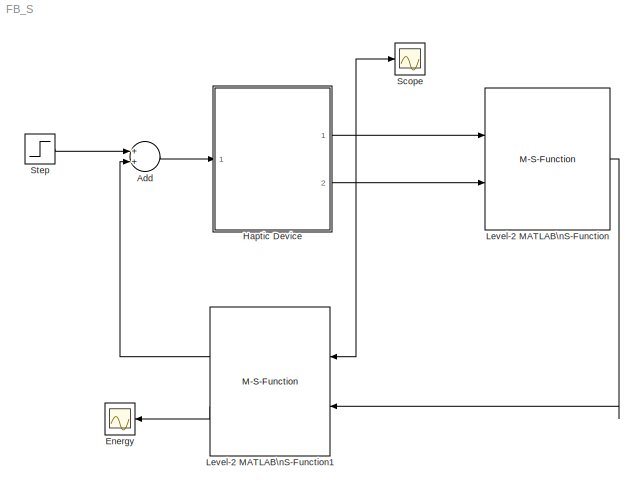
MODEL FB_S
KIND model
BLOCK [Sum] Add
  InputSameDT = off
  OutDataTypeStr = Inherit: Inherit via internal rule
  Ports = [2, 1]
  SID = 1
  SaturateOnIntegerOverflow = off
BLOCK [Scope] Energy
  Ports = [1]
  SID = 20
  ScopeSpecificationString = Simulink.scopes.TimeScopeBlockCfg('CurrentConfiguration', extmgr.ConfigurationSet(extmgr.Configuration('Core','General UI',true),extmgr.Configuration('Core','Source UI',true),extmgr.Configuration('Sources','WiredSimulink',true,'DataLoggingVariableName','ScopeData1'),extmgr.Configuration('Visuals','Time Domain',true,'SerializedDisplays',{struct('MinYLimReal','-0.09012','MaxYLimReal','0.81106','YLab...<+1387ch>
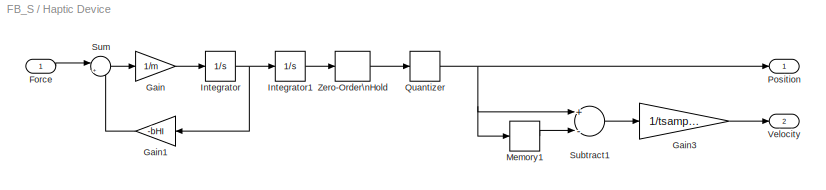
BLOCK [SubSystem] Haptic Device
  Ports = [1, 2]
  RequestExecContextInheritance = off
  SID = 2
  Variant = off
BLOCK [Inport] Haptic Device/Force
  IconDisplay = Port number
  SID = 3
BLOCK [Gain] Haptic Device/Gain
  Gain = 1/m
  OutDataTypeStr = Inherit: Inherit via internal rule
  ParamDataTypeStr = Inherit: Inherit via internal rule
  SID = 4
  SaturateOnIntegerOverflow = off
BLOCK [Gain] Haptic Device/Gain1
  Gain = -bHI
  OutDataTypeStr = Inherit: Inherit via internal rule
  ParamDataTypeStr = Inherit: Inherit via internal rule
  SID = 5
  SaturateOnIntegerOverflow = off
BLOCK [Gain] Haptic Device/Gain3
  Gain = 1/tsampling
  OutDataTypeStr = Inherit: Inherit via internal rule
  ParamDataTypeStr = Inherit: Inherit via internal rule
  SID = 6
  SaturateOnIntegerOverflow = off
BLOCK [Integrator] Haptic Device/Integrator
  InitialCondition = x_dot0
  Ports = [1, 1]
  SID = 7
BLOCK [Integrator] Haptic Device/Integrator1
  InitialCondition = x0
  Ports = [1, 1]
  SID = 8
BLOCK [Memory] Haptic Device/Memory1
  SID = 9
  X0 = x0
BLOCK [Outport] Haptic Device/Position
  IconDisplay = Port number
  SID = 14
BLOCK [Quantizer] Haptic Device/Quantizer
  QuantizationInterval = 0.00002
  SID = 10
BLOCK [Sum] Haptic Device/Subtract1
  InputSameDT = off
  Inputs = +-
  OutDataTypeStr = Inherit: Inherit via internal rule
  Ports = [2, 1]
  SID = 11
  SaturateOnIntegerOverflow = off
BLOCK [Sum] Haptic Device/Sum
  IconShape = round
  InputSameDT = off
  Inputs = |++
  OutDataTypeStr = Inherit: Inherit via internal rule
  Ports = [2, 1]
  SID = 12
  SaturateOnIntegerOverflow = off
BLOCK [Outport] Haptic Device/Velocity
  IconDisplay = Port number
  Port = 2
  SID = 15
BLOCK [ZeroOrderHold] Haptic Device/Zero-Order\nHold
  SID = 13
  SampleTime = tsampling
BLOCK [M-S-Function] Level-2 MATLAB\nS-Function
  FunctionName = VirtualEnvironment0
  Parameters = kWall, bWall, nWall, xWall, tsampling
  Ports = [2, 1]
  SID = 16
BLOCK [M-S-Function] Level-2 MATLAB\nS-Function1
  FunctionName = LessConservative
  Parameters = bHI, tsampling, x0
  Ports = [2, 2]
  SID = 19
BLOCK [Scope] Scope
  Ports = [1]
  SID = 17
  ScopeSpecificationString = Simulink.scopes.TimeScopeBlockCfg('CurrentConfiguration', extmgr.ConfigurationSet(extmgr.Configuration('Core','General UI',true),extmgr.Configuration('Core','Source UI',true),extmgr.Configuration('Sources','WiredSimulink',true),extmgr.Configuration('Visuals','Time Domain',true,'SerializedDisplays',{struct('MinYLimReal','0.05893','MaxYLimReal','0.14901','YLabelReal','','MinYLimMag','0.05893','MaxYL...<+1385ch>
BLOCK [Step] Step
  After = -10
  SID = 18
  SampleTime = 0
  Time = 0.35
LINE Add:1 -> Haptic Device:1
LINE Haptic Device/Force:1 -> Haptic Device/Sum:1
LINE Haptic Device/Gain1:1 -> Haptic Device/Sum:2
LINE Haptic Device/Gain3:1 -> Haptic Device/Velocity:1
LINE Haptic Device/Gain:1 -> Haptic Device/Integrator:1
LINE Haptic Device/Integrator1:1 -> Haptic Device/Zero-Order\nHold:1
NET Haptic Device/Integrator:1 -> Haptic Device/Gain1:1, Haptic Device/Integrator1:1
LINE Haptic Device/Memory1:1 -> Haptic Device/Subtract1:2
NET Haptic Device/Quantizer:1 -> Haptic Device/Memory1:1, Haptic Device/Position:1, Haptic Device/Subtract1:1
LINE Haptic Device/Subtract1:1 -> Haptic Device/Gain3:1
LINE Haptic Device/Sum:1 -> Haptic Device/Gain:1
LINE Haptic Device/Zero-Order\nHold:1 -> Haptic Device/Quantizer:1
NET Haptic Device:1 -> Level-2 MATLAB\nS-Function1:1, Level-2 MATLAB\nS-Function:1, Scope:1
LINE Haptic Device:2 -> Level-2 MATLAB\nS-Function:2
LINE Level-2 MATLAB\nS-Function1:1 -> Add:2
LINE Level-2 MATLAB\nS-Function1:2 -> Energy:1
LINE Level-2 MATLAB\nS-Function:1 -> Level-2 MATLAB\nS-Function1:2
LINE Step:1 -> Add:1
note: NET lines group one-source signal fan-out (src -> all destinations, sorted); 1:1 wires keep LINE
